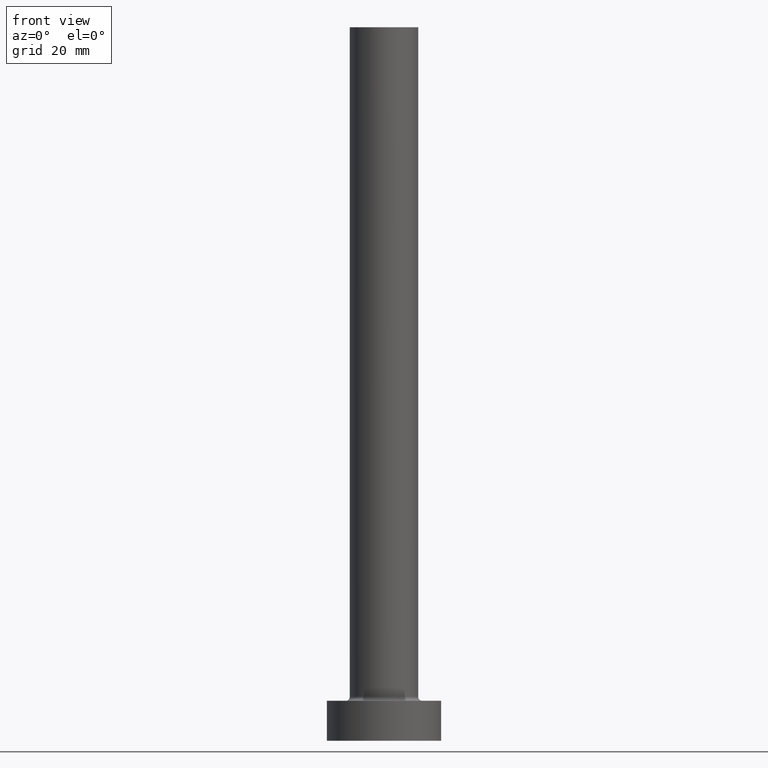
[diagram: clean part render]
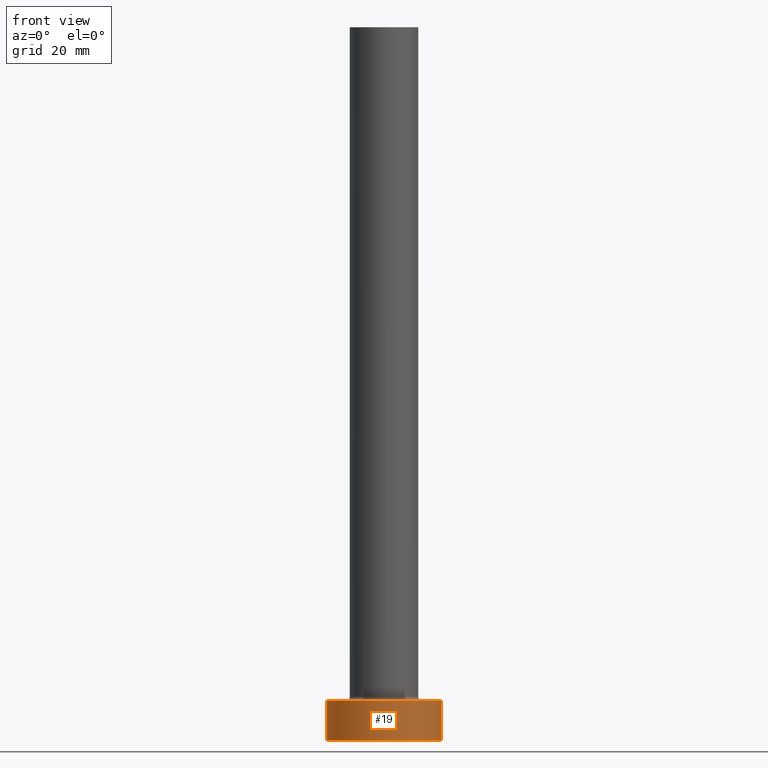
[diagram: same view with one face highlighted and labeled with its STEP entity id]
A machine part, front view. The second image highlights one B-rep face of the part: STEP entity #19.
In plain terms, the highlighted cylindrical surface (partial cylindrical patch) has radius 10 mm, axis along (-0, -0, -1).
Its self-contained STEP definition (entity closure, byte-faithful):
#10 = CARTESIAN_POINT ( 'NONE',  ( -10.00000000000000000, 0.000000000000000000, 7.000000000000000000 ) ) ;
#19 = ADVANCED_FACE ( 'NONE', ( #378 ), #136, .T. ) ;
#63 = DIRECTION ( 'NONE',  ( -1.000000000000000000, 0.000000000000000000, 0.000000000000000000 ) ) ;
#65 = VERTEX_POINT ( 'NONE', #349 ) ;
#68 = DIRECTION ( 'NONE',  ( -0.000000000000000000, -0.000000000000000000, -1.000000000000000000 ) ) ;
#94 = ORIENTED_EDGE ( 'NONE', *, *, #431, .F. ) ;
#98 = CIRCLE ( 'NONE', #438, 10.00000000000000000 ) ;
#106 = CARTESIAN_POINT ( 'NONE',  ( 10.00000000000000000, 1.224646799147353256E-15, 7.000000000000000000 ) ) ;
#129 = EDGE_CURVE ( 'NONE', #228, #459, #386, .T. ) ;
#133 = ORIENTED_EDGE ( 'NONE', *, *, #129, .F. ) ;
#136 = CYLINDRICAL_SURFACE ( 'NONE', #159, 10.00000000000000000 ) ;
#159 = AXIS2_PLACEMENT_3D ( 'NONE', #274, #353, #63 ) ;
#179 = CIRCLE ( 'NONE', #278, 10.00000000000000000 ) ;
#187 = VECTOR ( 'NONE', #406, 1000.000000000000000 ) ;
#212 = EDGE_LOOP ( 'NONE', ( #133, #94, #336, #272 ) ) ;
#217 = CARTESIAN_POINT ( 'NONE',  ( 10.00000000000000000, 1.224646799147353256E-15, 7.000000000000000000 ) ) ;
#224 = DIRECTION ( 'NONE',  ( 0.000000000000000000, 0.000000000000000000, 1.000000000000000000 ) ) ;
#228 = VERTEX_POINT ( 'NONE', #217 ) ;
#231 = CARTESIAN_POINT ( 'NONE',  ( 10.00000000000000000, 1.224646799147353256E-15, 0.000000000000000000 ) ) ;
#272 = ORIENTED_EDGE ( 'NONE', *, *, #322, .T. ) ;
#274 = CARTESIAN_POINT ( 'NONE',  ( 0.000000000000000000, 0.000000000000000000, 7.000000000000000000 ) ) ;
#278 = AXIS2_PLACEMENT_3D ( 'NONE', #410, #343, #408 ) ;
#322 = EDGE_CURVE ( 'NONE', #65, #459, #98, .T. ) ;
#335 = LINE ( 'NONE', #444, #187 ) ;
#336 = ORIENTED_EDGE ( 'NONE', *, *, #436, .T. ) ;
#343 = DIRECTION ( 'NONE',  ( 0.000000000000000000, 0.000000000000000000, 1.000000000000000000 ) ) ;
#349 = CARTESIAN_POINT ( 'NONE',  ( -10.00000000000000000, 0.000000000000000000, 0.000000000000000000 ) ) ;
#353 = DIRECTION ( 'NONE',  ( -0.000000000000000000, -0.000000000000000000, -1.000000000000000000 ) ) ;
#359 = VECTOR ( 'NONE', #68, 1000.000000000000000 ) ;
#362 = DIRECTION ( 'NONE',  ( 1.000000000000000000, 0.000000000000000000, 0.000000000000000000 ) ) ;
#368 = VERTEX_POINT ( 'NONE', #10 ) ;
#378 = FACE_OUTER_BOUND ( 'NONE', #212, .T. ) ;
#386 = LINE ( 'NONE', #106, #359 ) ;
#406 = DIRECTION ( 'NONE',  ( -0.000000000000000000, -0.000000000000000000, -1.000000000000000000 ) ) ;
#408 = DIRECTION ( 'NONE',  ( 1.000000000000000000, 0.000000000000000000, 0.000000000000000000 ) ) ;
#410 = CARTESIAN_POINT ( 'NONE',  ( 0.000000000000000000, 0.000000000000000000, 7.000000000000000000 ) ) ;
#431 = EDGE_CURVE ( 'NONE', #368, #228, #179, .T. ) ;
#435 = CARTESIAN_POINT ( 'NONE',  ( 0.000000000000000000, 0.000000000000000000, 0.000000000000000000 ) ) ;
#436 = EDGE_CURVE ( 'NONE', #368, #65, #335, .T. ) ;
#438 = AXIS2_PLACEMENT_3D ( 'NONE', #435, #224, #362 ) ;
#444 = CARTESIAN_POINT ( 'NONE',  ( -10.00000000000000000, 0.000000000000000000, 7.000000000000000000 ) ) ;
#459 = VERTEX_POINT ( 'NONE', #231 ) ;